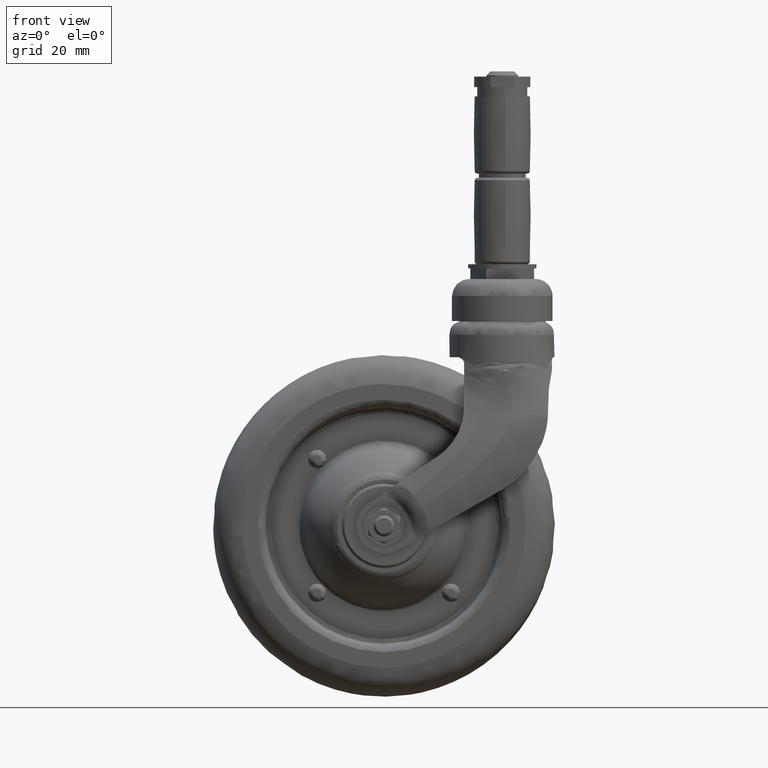
[diagram: clean part render]
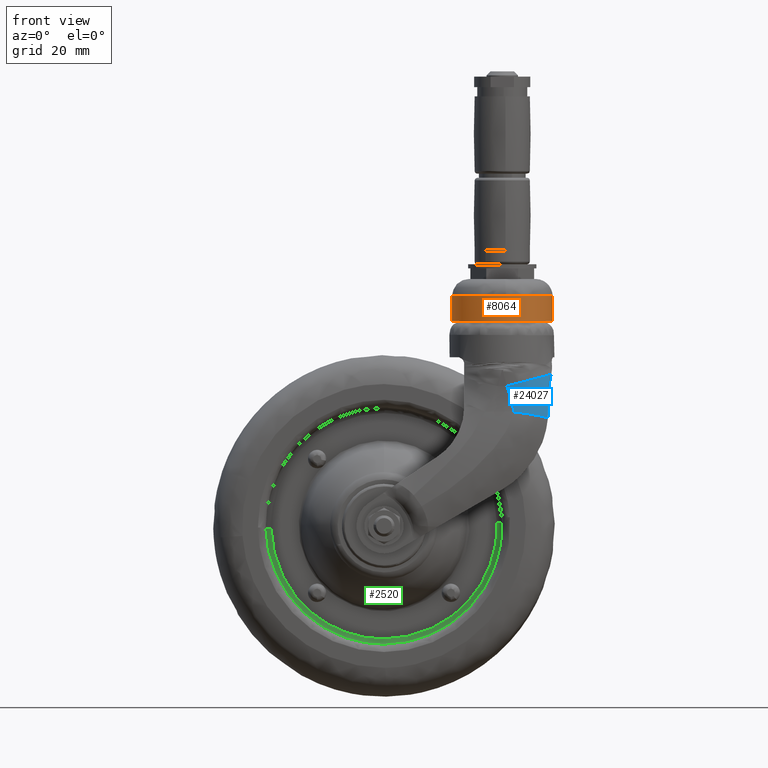
[diagram: same view with three faces highlighted in distinct colors, each labeled with its STEP entity id]
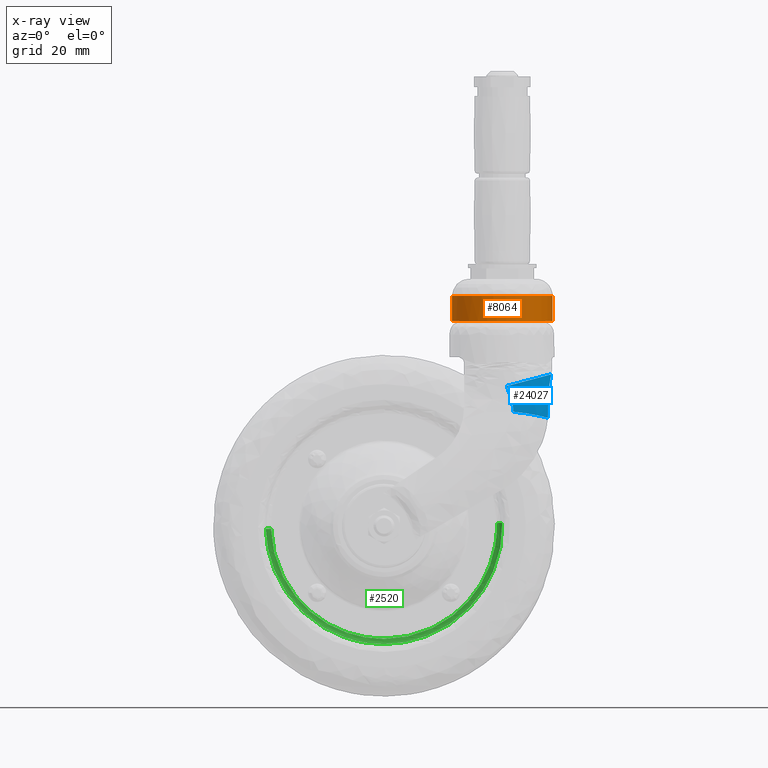
[diagram: x-ray of the same camera — body ghosted, the three highlighted faces saturated]
A machine part, front view with three faces highlighted in distinct colors.
The next image is the same camera in x-ray (body ghosted, the three faces saturated) — at least one of them is partly hidden behind the body in this view.
Their STEP definitions:

[orange] entity #8064 — the highlighted face is a freeform B-spline surface patch.
#7898=CARTESIAN_POINT('',(55.931590452188516,15.723321219946532,87.737500000254144));
#7899=CARTESIAN_POINT('',(63.379279464563020,10.545338466833288,87.737500000254130));
#7900=CARTESIAN_POINT('',(64.090966940989404,1.502491683188218,87.737500000254130));
#7901=CARTESIAN_POINT('',(65.593458624177615,-17.588475257801171,87.737500000254144));
#7902=CARTESIAN_POINT('',(46.502491683188218,-19.090966940989400,87.737500000254130));
#7903=CARTESIAN_POINT('',(27.411524742198825,-20.593458624177611,87.737500000254144));
#7904=CARTESIAN_POINT('',(25.909033059010600,-1.502491683188218,87.737500000254130));
#7905=CARTESIAN_POINT('',(24.406541375822385,17.588475257801171,87.737500000254144));
#7906=CARTESIAN_POINT('',(43.497508316811782,19.090966940989400,87.737500000254130));
#7907=CARTESIAN_POINT('',(55.931590452188516,15.723321219946532,77.756562499993635));
#7908=CARTESIAN_POINT('',(63.379279464563020,10.545338466833288,77.756562499993620));
#7909=CARTESIAN_POINT('',(64.090966940989404,1.502491683188218,77.756562499993635));
#7910=CARTESIAN_POINT('',(65.593458624177615,-17.588475257801171,77.756562499993635));
#7911=CARTESIAN_POINT('',(46.502491683188218,-19.090966940989400,77.756562499993635));
#7912=CARTESIAN_POINT('',(27.411524742198825,-20.593458624177611,77.756562499993635));
#7913=CARTESIAN_POINT('',(25.909033059010600,-1.502491683188218,77.756562499993635));
#7914=CARTESIAN_POINT('',(24.406541375822385,17.588475257801171,77.756562499993635));
#7915=CARTESIAN_POINT('',(43.497508316811782,19.090966940989400,77.756562499993635));
#7923=(BOUNDED_SURFACE()B_SPLINE_SURFACE(2,1,((#7898,#7907),(#7899,#7908),(#7900,#7909),(#7901,#7910),(#7902,#7911),(#7903,#7912),(#7904,#7913),(#7905,#7914),(#7906,#7915)),.UNSPECIFIED.,.F.,.F.,.U.)B_SPLINE_SURFACE_WITH_KNOTS((3,2,2,2,3),(2,2),(0.0,17.768104971556280,49.496863849335348,81.225622727114427,112.954381604893500),(0.0,9.980937500260506),.UNSPECIFIED.)GEOMETRIC_REPRESENTATION_ITEM()RATIONAL_B_SPLINE_SURFACE(((0.855662221768731,0.855662221768731),(0.835979797464467,0.835979797464467),(1.0,1.0),(0.707106781186548,0.707106781186548),(1.0,1.0),(0.707106781186548,0.707106781186548),(1.0,1.0),(0.707106781186548,0.707106781186548),(1.0,1.0)))REPRESENTATION_ITEM('')SURFACE());
#7924=CARTESIAN_POINT('',(55.931580559393751,15.723328097872169,87.500000000042633));
#7925=VERTEX_POINT('',#7924);
#7926=CARTESIAN_POINT('',(64.148487996503064,0.240639663767202,87.500000000230926));
#7927=VERTEX_POINT('',#7926);
#7928=CARTESIAN_POINT('',(55.931580559393751,15.723328097872166,87.500000000042633));
#7929=CARTESIAN_POINT('',(64.024626944388487,10.096670180558499,87.500000000110560));
#7930=CARTESIAN_POINT('',(64.148487996503079,0.240639663767202,87.500000000230926));
#7938=(BOUNDED_CURVE()B_SPLINE_CURVE(2,(#7928,#7929,#7930),.UNSPECIFIED.,.F.,.U.)B_SPLINE_CURVE_WITH_KNOTS((3,3),(0.348090513248019,0.497784295921710),.UNSPECIFIED.)CURVE()GEOMETRIC_REPRESENTATION_ITEM()RATIONAL_B_SPLINE_CURVE((0.860340269869817,0.822585791651068,0.994854295643969))REPRESENTATION_ITEM(''));
#7939=EDGE_CURVE('',#7925,#7927,#7938,.T.);
#7940=ORIENTED_EDGE('',*,*,#7939,.T.);
#7941=CARTESIAN_POINT('',(64.150000000000006,0.0,87.500000000000000));
#7942=VERTEX_POINT('',#7941);
#7943=CARTESIAN_POINT('',(64.148487996503064,0.240639663767202,87.500000000230926));
#7944=CARTESIAN_POINT('',(64.150000000000006,0.120324582045696,87.500000000000000));
#7945=CARTESIAN_POINT('',(64.150000000000006,0.0,87.500000000000000));
#7953=(BOUNDED_CURVE()B_SPLINE_CURVE(2,(#7943,#7944,#7945),.UNSPECIFIED.,.F.,.U.)B_SPLINE_CURVE_WITH_KNOTS((3,3),(0.497784295921710,0.500000000000000),.UNSPECIFIED.)CURVE()GEOMETRIC_REPRESENTATION_ITEM()RATIONAL_B_SPLINE_CURVE((0.994854295643970,0.997404141202286,1.0))REPRESENTATION_ITEM(''));
#7954=EDGE_CURVE('',#7927,#7942,#7953,.T.);
#7955=ORIENTED_EDGE('',*,*,#7954,.T.);
#7956=CARTESIAN_POINT('',(46.335391767929060,-19.103382654026149,87.500000000247937));
#7957=VERTEX_POINT('',#7956);
#7958=CARTESIAN_POINT('',(64.150000000000006,0.0,87.500000000000000));
#7959=CARTESIAN_POINT('',(64.150000000000020,-17.858080624669636,87.500000000000000));
#7960=CARTESIAN_POINT('',(46.335391767929067,-19.103382654026152,87.500000000247937));
#7968=(BOUNDED_CURVE()B_SPLINE_CURVE(2,(#7958,#7959,#7960),.UNSPECIFIED.,.F.,.U.)B_SPLINE_CURVE_WITH_KNOTS((3,3),(0.500000000000000,0.737833686530464),.UNSPECIFIED.)CURVE()GEOMETRIC_REPRESENTATION_ITEM()RATIONAL_B_SPLINE_CURVE((1.0,0.721360504039291,0.972879876377188))REPRESENTATION_ITEM(''));
#7969=EDGE_CURVE('',#7942,#7957,#7968,.T.);
#7970=ORIENTED_EDGE('',*,*,#7969,.T.);
#7971=CARTESIAN_POINT('',(25.850000000000001,0.0,87.500000000000000));
#7972=VERTEX_POINT('',#7971);
#7973=CARTESIAN_POINT('',(46.335391767929060,-19.103382654026145,87.500000000247937));
#7974=CARTESIAN_POINT('',(45.668509569261033,-19.149999999999999,87.500000000000000));
#7975=CARTESIAN_POINT('',(45.0,-19.149999999999999,87.500000000000000));
#7976=CARTESIAN_POINT('',(25.850000000000005,-19.150000000000006,87.500000000000000));
#7977=CARTESIAN_POINT('',(25.850000000000001,0.0,87.500000000000000));
#7985=(BOUNDED_CURVE()B_SPLINE_CURVE(2,(#7973,#7974,#7975,#7976,#7977),.UNSPECIFIED.,.F.,.U.)B_SPLINE_CURVE_WITH_KNOTS((3,2,3),(0.737833686530465,0.750000000000000,1.0),.UNSPECIFIED.)CURVE()GEOMETRIC_REPRESENTATION_ITEM()RATIONAL_B_SPLINE_CURVE((0.972879876377190,0.985746277147258,1.0,0.707106781186548,1.0))REPRESENTATION_ITEM(''));
#7986=EDGE_CURVE('',#7957,#7972,#7985,.T.);
#7987=ORIENTED_EDGE('',*,*,#7986,.T.);
#7988=CARTESIAN_POINT('',(43.497508316598797,19.090966940972638,87.500000000000000));
#7989=VERTEX_POINT('',#7988);
#7990=CARTESIAN_POINT('',(25.850000000000001,0.0,87.500000000000000));
#7991=CARTESIAN_POINT('',(25.849999999999994,17.702077914858471,87.500000000000000));
#7992=CARTESIAN_POINT('',(43.497508316598797,19.090966940972631,87.500000000000000));
#8000=(BOUNDED_CURVE()B_SPLINE_CURVE(2,(#7990,#7991,#7992),.UNSPECIFIED.,.F.,.U.)B_SPLINE_CURVE_WITH_KNOTS((3,3),(0.0,0.236331300628942),.UNSPECIFIED.)CURVE()GEOMETRIC_REPRESENTATION_ITEM()RATIONAL_B_SPLINE_CURVE((1.0,0.723120658609678,0.969723356163833))REPRESENTATION_ITEM(''));
#8001=EDGE_CURVE('',#7972,#7989,#8000,.T.);
#8002=ORIENTED_EDGE('',*,*,#8001,.T.);
#8003=CARTESIAN_POINT('',(43.497508316598797,19.090966940972638,78.0));
#8004=VERTEX_POINT('',#8003);
#8005=CARTESIAN_POINT('',(43.497508316598797,19.090966940972638,87.500000000000000));
#8006=CARTESIAN_POINT('',(43.497508316598797,19.090966940972638,78.0));
#8007=QUASI_UNIFORM_CURVE('',1,(#8005,#8006),.UNSPECIFIED.,.F.,.U.);
#8008=EDGE_CURVE('',#7989,#8004,#8007,.T.);
#8009=ORIENTED_EDGE('',*,*,#8008,.T.);
#8010=CARTESIAN_POINT('',(25.850000000000001,0.0,78.0));
#8011=VERTEX_POINT('',#8010);
#8012=CARTESIAN_POINT('',(25.850000000000001,0.0,78.0));
#8013=CARTESIAN_POINT('',(25.849999999999994,17.702077914858471,77.999999999999986));
#8014=CARTESIAN_POINT('',(43.497508316598797,19.090966940972631,78.0));
#8022=(BOUNDED_CURVE()B_SPLINE_CURVE(2,(#8012,#8013,#8014),.UNSPECIFIED.,.F.,.U.)B_SPLINE_CURVE_WITH_KNOTS((3,3),(0.0,0.236331300628942),.UNSPECIFIED.)CURVE()GEOMETRIC_REPRESENTATION_ITEM()RATIONAL_B_SPLINE_CURVE((1.0,0.723120658609678,0.969723356163833))REPRESENTATION_ITEM(''));
#8023=EDGE_CURVE('',#8011,#8004,#8022,.T.);
#8024=ORIENTED_EDGE('',*,*,#8023,.F.);
#8025=CARTESIAN_POINT('',(64.150000000000006,0.0,78.0));
#8026=VERTEX_POINT('',#8025);
#8027=CARTESIAN_POINT('',(64.150000000000006,0.0,78.0));
#8028=CARTESIAN_POINT('',(64.150000000000006,-19.150000000000006,78.0));
#8029=CARTESIAN_POINT('',(45.0,-19.149999999999999,78.0));
#8030=CARTESIAN_POINT('',(25.850000000000005,-19.150000000000006,78.0));
#8031=CARTESIAN_POINT('',(25.850000000000001,0.0,78.0));
#8039=(BOUNDED_CURVE()B_SPLINE_CURVE(2,(#8027,#8028,#8029,#8030,#8031),.UNSPECIFIED.,.F.,.U.)B_SPLINE_CURVE_WITH_KNOTS((3,2,3),(0.500000000000000,0.750000000000000,1.0),.UNSPECIFIED.)CURVE()GEOMETRIC_REPRESENTATION_ITEM()RATIONAL_B_SPLINE_CURVE((1.0,0.707106781186548,1.0,0.707106781186548,1.0))REPRESENTATION_ITEM(''));
#8040=EDGE_CURVE('',#8026,#8011,#8039,.T.);
#8041=ORIENTED_EDGE('',*,*,#8040,.F.);
#8042=CARTESIAN_POINT('',(55.931580821746678,15.723327915472691,78.0));
#8043=VERTEX_POINT('',#8042);
#8044=CARTESIAN_POINT('',(55.931580821746671,15.723327915472691,78.0));
#8045=CARTESIAN_POINT('',(64.150000000000006,10.009504864972540,78.0));
#8046=CARTESIAN_POINT('',(64.150000000000006,0.0,78.0));
#8054=(BOUNDED_CURVE()B_SPLINE_CURVE(2,(#8044,#8045,#8046),.UNSPECIFIED.,.F.,.U.)B_SPLINE_CURVE_WITH_KNOTS((3,3),(0.348090515785697,0.500000000000000),.UNSPECIFIED.)CURVE()GEOMETRIC_REPRESENTATION_ITEM()RATIONAL_B_SPLINE_CURVE((0.860340268589754,0.822026968800726,1.0))REPRESENTATION_ITEM(''));
#8055=EDGE_CURVE('',#8043,#8026,#8054,.T.);
#8056=ORIENTED_EDGE('',*,*,#8055,.F.);
#8057=CARTESIAN_POINT('',(55.931580559393751,15.723328097872169,87.500000000042633));
#8058=CARTESIAN_POINT('',(55.931580821746678,15.723327915472691,78.0));
#8059=QUASI_UNIFORM_CURVE('',1,(#8057,#8058),.UNSPECIFIED.,.F.,.U.);
#8060=EDGE_CURVE('',#7925,#8043,#8059,.T.);
#8061=ORIENTED_EDGE('',*,*,#8060,.F.);
#8062=EDGE_LOOP('',(#7940,#7955,#7970,#7987,#8002,#8009,#8024,#8041,#8056,#8061));
#8063=FACE_OUTER_BOUND('',#8062,.T.);
#8064=ADVANCED_FACE('',(#8063),#7923,.T.);

[blue] entity #24027 — the highlighted face is a freeform B-spline surface patch.
#19320=CARTESIAN_POINT('',(62.366952196205098,-16.766161363018700,41.118420051766300));
#19321=VERTEX_POINT('',#19320);
#19368=CARTESIAN_POINT('',(62.480410758347212,-15.918918824776251,45.338137530343097));
#19369=VERTEX_POINT('',#19368);
#19375=CARTESIAN_POINT('',(62.480410758347212,-15.918918824776251,45.338137530343097));
#19376=CARTESIAN_POINT('',(62.503967359121667,-16.063319316586458,44.634350633703683));
#19377=CARTESIAN_POINT('',(62.506268242472864,-16.210553697540568,43.931704253453390));
#19378=CARTESIAN_POINT('',(62.468566438099693,-16.497568229459290,42.526052264532403));
#19379=CARTESIAN_POINT('',(62.428567308913280,-16.637368596504832,41.823050619202121));
#19380=CARTESIAN_POINT('',(62.366952196205098,-16.766161363018700,41.118420051766300));
#19381=B_SPLINE_CURVE_WITH_KNOTS('',3,(#19375,#19376,#19377,#19378,#19379,#19380),.UNSPECIFIED.,.F.,.U.,(4,2,4),(0.0,0.500000000000000,1.0),.UNSPECIFIED.);
#19382=EDGE_CURVE('',#19369,#19321,#19381,.T.);
#21235=CARTESIAN_POINT('',(49.143115778760396,-21.460217302238799,43.448091829986900));
#21236=VERTEX_POINT('',#21235);
#21237=CARTESIAN_POINT('',(49.143115778760396,-21.460217302238799,43.448091829986900));
#21238=CARTESIAN_POINT('',(56.712198262451942,-21.613093153967789,42.679318348191238));
#21239=CARTESIAN_POINT('',(62.366952196205098,-16.766161363018700,41.118420051766300));
#21247=(BOUNDED_CURVE()B_SPLINE_CURVE(2,(#21237,#21238,#21239),.UNSPECIFIED.,.F.,.U.)CURVE()GEOMETRIC_REPRESENTATION_ITEM()QUASI_UNIFORM_CURVE()RATIONAL_B_SPLINE_CURVE((1.0,0.934635163372556,1.0))REPRESENTATION_ITEM(''));
#21248=EDGE_CURVE('',#21236,#19321,#21247,.T.);
#21551=CARTESIAN_POINT('',(46.713380783598602,-20.500000000000000,53.200000000000003));
#21552=VERTEX_POINT('',#21551);
#21578=CARTESIAN_POINT('',(49.143115778760396,-21.460217302238799,43.448091829986900));
#21579=CARTESIAN_POINT('',(49.174056819734872,-21.418592650326410,43.657411262560153));
#21580=CARTESIAN_POINT('',(49.188845561602712,-21.378434806352171,43.866354946182533));
#21581=CARTESIAN_POINT('',(49.198274445723108,-21.300924421536120,44.283943736772180));
#21582=CARTESIAN_POINT('',(49.192648241553123,-21.263574292428270,44.492578850308632));
#21583=CARTESIAN_POINT('',(49.166275595280972,-21.191620032403069,44.909736764950850));
#21584=CARTESIAN_POINT('',(49.145464928797047,-21.157016504487480,45.118257160072588));
#21585=CARTESIAN_POINT('',(49.105308391248570,-21.107141780261362,45.431042297895956));
#21586=CARTESIAN_POINT('',(49.090421261273718,-21.090855434623720,45.535304340750002));
#21587=CARTESIAN_POINT('',(49.057954103957748,-21.058956190929869,45.743840579709527));
#21588=CARTESIAN_POINT('',(49.040361379498748,-21.043335975756701,45.848169311151743));
#21589=CARTESIAN_POINT('',(48.946727377647512,-20.967212593207361,46.367762748305637));
#21590=CARTESIAN_POINT('',(48.853743376976418,-20.912348721627112,46.778650683191607));
#21591=CARTESIAN_POINT('',(48.644651158054259,-20.813498985255880,47.594600525758793));
#21592=CARTESIAN_POINT('',(48.528404983532560,-20.769524529238488,47.999622639678002));
#21593=CARTESIAN_POINT('',(48.280651777769357,-20.691789571381332,48.806107746404777));
#21594=CARTESIAN_POINT('',(48.149095951428372,-20.658033439794849,49.207556695709137));
#21595=CARTESIAN_POINT('',(47.876471354646483,-20.600341162683620,50.008561132338663));
#21596=CARTESIAN_POINT('',(47.735385802775603,-20.576407076579720,50.408111842266173));
#21597=CARTESIAN_POINT('',(47.448158042933393,-20.538152476143232,51.206620489831202));
#21598=CARTESIAN_POINT('',(47.302011696961060,-20.523836523182450,51.605603497391471));
#21599=CARTESIAN_POINT('',(47.008371367045399,-20.504763562517240,52.402911780716970));
#21600=CARTESIAN_POINT('',(46.860868293069053,-20.500000000000000,52.801406872918641));
#21601=CARTESIAN_POINT('',(46.713380783598502,-20.500000000000000,53.200000000000003));
#21602=B_SPLINE_CURVE_WITH_KNOTS('',3,(#21578,#21579,#21580,#21581,#21582,#21583,#21584,#21585,#21586,#21587,#21588,#21589,#21590,#21591,#21592,#21593,#21594,#21595,#21596,#21597,#21598,#21599,#21600,#21601),.UNSPECIFIED.,.F.,.U.,(4,2,2,2,2,2,2,2,2,2,2,4),(0.0,0.062499999999999,0.124999999999997,0.187499999999996,0.218749999999995,0.249999999999994,0.374999999999995,0.499999999999996,0.624999999999997,0.749999999999998,0.874999999999999,1.0),.UNSPECIFIED.);
#21603=EDGE_CURVE('',#21236,#21552,#21602,.T.);
#23856=CARTESIAN_POINT('',(46.600768520186833,-20.499975799452542,53.223470933451175));
#23857=CARTESIAN_POINT('',(46.606699549181634,-20.499983866333316,53.207293645348827));
#23858=CARTESIAN_POINT('',(46.612630554909714,-20.499991933182461,53.191116420708177));
#23859=CARTESIAN_POINT('',(46.692696856732148,-20.500100832550995,52.972730094659674));
#23860=CARTESIAN_POINT('',(46.766949182156502,-20.501428866049793,52.770576655975340));
#23861=CARTESIAN_POINT('',(46.915506413374693,-20.506534524569329,52.366370507602667));
#23862=CARTESIAN_POINT('',(46.989805912162062,-20.510312371506330,52.164316339436589));
#23863=CARTESIAN_POINT('',(47.212260244863302,-20.525319819253788,51.558226589094886));
#23864=CARTESIAN_POINT('',(47.360068996294004,-20.540234751755822,51.154063866682399));
#23865=CARTESIAN_POINT('',(47.650206760371702,-20.579836741460653,50.346709325130796));
#23866=CARTESIAN_POINT('',(47.792549501964238,-20.604520631511249,49.943459725566640));
#23867=CARTESIAN_POINT('',(48.066797106867035,-20.663685166896947,49.137294456169265));
#23868=CARTESIAN_POINT('',(48.198716151934768,-20.698165526792561,48.734381994235747));
#23869=CARTESIAN_POINT('',(48.445982517971913,-20.777034936374104,47.928272147279380));
#23870=CARTESIAN_POINT('',(48.561369977281672,-20.821422731876154,47.525080847645143));
#23871=CARTESIAN_POINT('',(48.767569102332693,-20.920318356572739,46.717654485473702));
#23872=CARTESIAN_POINT('',(48.858486166115547,-20.974823358029784,46.313429575424877));
#23873=CARTESIAN_POINT('',(48.967573916419084,-21.064434611710364,45.705539587681798));
#23874=CARTESIAN_POINT('',(48.999353402498905,-21.095614759270390,45.502651609800353));
#23875=CARTESIAN_POINT('',(49.051459488120116,-21.160659595121381,45.096180187670548));
#23876=CARTESIAN_POINT('',(49.071810075835629,-21.194523902355701,44.892597755749463));
#23877=CARTESIAN_POINT('',(49.097731101790721,-21.265020799634236,44.484513825220652));
#23878=CARTESIAN_POINT('',(49.103370382928830,-21.301653227202895,44.280011847569142));
#23879=CARTESIAN_POINT('',(49.096536345153012,-21.358760190873362,43.972354852027728));
#23880=CARTESIAN_POINT('',(49.091688756085944,-21.378155774615006,43.869651347218245));
#23881=CARTESIAN_POINT('',(49.075615050368675,-21.417681629930279,43.663908700361020));
#23882=CARTESIAN_POINT('',(49.064391823308348,-21.437811691641347,43.560872437065953));
#23883=CARTESIAN_POINT('',(49.046542320187584,-21.461597252257974,43.441135035149827));
#23884=CARTESIAN_POINT('',(49.044080327507558,-21.464878008911676,43.424619583428367));
#23885=CARTESIAN_POINT('',(49.041618336694881,-21.468158763076950,43.408104144233604));
#23886=CARTESIAN_POINT('',(46.648064589554721,-20.499987889849390,53.235971026861741));
#23887=CARTESIAN_POINT('',(46.654020512343720,-20.499991926574157,53.219800441154526));
#23888=CARTESIAN_POINT('',(46.659976423441002,-20.499995963291017,53.203629887190978));
#23889=CARTESIAN_POINT('',(46.740380080604659,-20.500050458194185,52.985330511025694));
#23890=CARTESIAN_POINT('',(46.814876995028285,-20.501326833543143,52.783238973649311));
#23891=CARTESIAN_POINT('',(46.963829703860455,-20.506328770522714,52.379118019345768));
#23892=CARTESIAN_POINT('',(47.038281222032509,-20.510054410817006,52.177087243261560));
#23893=CARTESIAN_POINT('',(47.261094039016456,-20.524906877859674,51.571006900620262));
#23894=CARTESIAN_POINT('',(47.409018505542114,-20.539719655703802,51.166770206763680));
#23895=CARTESIAN_POINT('',(47.699260005712695,-20.579133549451637,50.359098631982100));
#23896=CARTESIAN_POINT('',(47.841590100175388,-20.603731041989473,49.955605966932609));
#23897=CARTESIAN_POINT('',(48.115746719963283,-20.662751606520789,49.148777367113681));
#23898=CARTESIAN_POINT('',(48.247586259083270,-20.697174207407439,48.745443657822207));
#23899=CARTESIAN_POINT('',(48.494659310267394,-20.775972285514172,47.938291826051987));
#23900=CARTESIAN_POINT('',(48.609932046248716,-20.820346468756345,47.534478809010217));
#23901=CARTESIAN_POINT('',(48.815881858710505,-20.919281302006837,46.725557249335530));
#23902=CARTESIAN_POINT('',(48.906663857621218,-20.973838889091979,46.320459432693440));
#23903=CARTESIAN_POINT('',(49.015537146140609,-21.063608878379672,45.710979519505379));
#23904=CARTESIAN_POINT('',(49.047242726777874,-21.094855652852633,45.507512483900634));
#23905=CARTESIAN_POINT('',(49.099195996605154,-21.160070804756518,45.099751410941188));
#23906=CARTESIAN_POINT('',(49.119467739102646,-21.194038648466371,44.895459188934872));
#23907=CARTESIAN_POINT('',(49.145224388689584,-21.264797408788773,44.485756432969843));
#23908=CARTESIAN_POINT('',(49.150778382661422,-21.301587300179968,44.280349428765795));
#23909=CARTESIAN_POINT('',(49.143808158034723,-21.359001250156933,43.971065172477374));
#23910=CARTESIAN_POINT('',(49.138913786356134,-21.378511171176036,43.867773418285225));
#23911=CARTESIAN_POINT('',(49.122742063217927,-21.418301694221729,43.660711971639628));
#23912=CARTESIAN_POINT('',(49.111472445596881,-21.438582260480747,43.556943149354602));
#23913=CARTESIAN_POINT('',(49.093552783740549,-21.462575601832381,43.436223860215769));
#23914=CARTESIAN_POINT('',(49.091081110160303,-21.465885022980846,43.419572950171670));
#23915=CARTESIAN_POINT('',(49.088609437518144,-21.469194442873299,43.402922046447074));
#23916=CARTESIAN_POINT('',(58.708064764623572,-20.503070813867883,56.423363356387050));
#23917=CARTESIAN_POINT('',(58.723395944985725,-20.502047718899881,56.409701997497926));
#23918=CARTESIAN_POINT('',(58.738734760671832,-20.501024114404146,56.396033834899107));
#23919=CARTESIAN_POINT('',(58.946558978191945,-20.487155390264771,56.210845143987683));
#23920=CARTESIAN_POINT('',(59.114266227620107,-20.475142924064304,56.032683593110605));
#23921=CARTESIAN_POINT('',(59.414972812264097,-20.453313484238425,55.663685179285586));
#23922=CARTESIAN_POINT('',(59.547965083043302,-20.443484301607004,55.472784989120072));
#23923=CARTESIAN_POINT('',(59.908519922375511,-20.417959511459276,54.880969716060925));
#23924=CARTESIAN_POINT('',(60.098703366830932,-20.406186006977340,54.460765465325153));
#23925=CARTESIAN_POINT('',(60.419012639151646,-20.396792333360917,53.571708059811236));
#23926=CARTESIAN_POINT('',(60.548785166110726,-20.399135901614304,53.102889319609758));
#23927=CARTESIAN_POINT('',(60.767937484650226,-20.421450741769178,52.116808585611324));
#23928=CARTESIAN_POINT('',(60.857090456118641,-20.441393185498427,51.599582958068083));
#23929=CARTESIAN_POINT('',(61.002900524869048,-20.502908004646233,50.513000492544812));
#23930=CARTESIAN_POINT('',(61.059435726159826,-20.544432736995265,49.943765667804328));
#23931=CARTESIAN_POINT('',(61.140033713169224,-20.654737961702718,48.741481597379085));
#23932=CARTESIAN_POINT('',(61.164068641263036,-20.723369555863474,48.109001046429050));
#23933=CARTESIAN_POINT('',(61.170868399772580,-20.854343109164486,47.089622569544005));
#23934=CARTESIAN_POINT('',(61.168186030577331,-20.902723356365897,46.737815484910143));
#23935=CARTESIAN_POINT('',(61.151446360737708,-21.011416261001603,46.001394164670970));
#23936=CARTESIAN_POINT('',(61.137392329814126,-21.071671242063204,45.617032297777619));
#23937=CARTESIAN_POINT('',(61.095900484214305,-21.208585851085743,44.798432259250234));
#23938=CARTESIAN_POINT('',(61.068451753791351,-21.285014216945882,44.365212373010266));
#23939=CARTESIAN_POINT('',(61.015487549588997,-21.419540043874171,43.647179516169977));
#23940=CARTESIAN_POINT('',(60.995864061471657,-21.467741804332814,43.396275362022294));
#23941=CARTESIAN_POINT('',(60.952494078539537,-21.573949301782907,42.858273927134839));
#23942=CARTESIAN_POINT('',(60.929990189420778,-21.632016014297459,42.570584977355736));
#23943=CARTESIAN_POINT('',(60.898545828881524,-21.708253032956875,42.202958294253790));
#23944=CARTESIAN_POINT('',(60.894206979991729,-21.718772595069076,42.152231340406473));
#23945=CARTESIAN_POINT('',(60.889867719819783,-21.729293154337075,42.101499578119835));
#23946=CARTESIAN_POINT('',(64.030136953883925,-9.365544225334030,57.841038391967572));
#23947=CARTESIAN_POINT('',(64.042101526158362,-9.351474657239232,57.822797516901709));
#23948=CARTESIAN_POINT('',(64.054067569589222,-9.337403359159010,57.804554398949101));
#23949=CARTESIAN_POINT('',(64.215753286017645,-9.147271347327056,57.558052569576709));
#23950=CARTESIAN_POINT('',(64.347305830313587,-9.006249257463599,57.322998996185191));
#23951=CARTESIAN_POINT('',(64.588443320632393,-8.774379503294663,56.840372475680276));
#23952=CARTESIAN_POINT('',(64.697954528440121,-8.683763958177138,56.592690896442747));
#23953=CARTESIAN_POINT('',(65.004908864014027,-8.469963368284754,55.830550076414411));
#23954=CARTESIAN_POINT('',(65.181660319360574,-8.404295236773629,55.297019450853718));
#23955=CARTESIAN_POINT('',(65.506291169335142,-8.372665087470756,54.179486994947226));
#23956=CARTESIAN_POINT('',(65.653672783512093,-8.407277421014463,53.595587935699797));
#23957=CARTESIAN_POINT('',(65.927289872886291,-8.548618702755457,52.372542190829783));
#23958=CARTESIAN_POINT('',(66.053325941797340,-8.655539503572308,51.733570749532660));
#23959=CARTESIAN_POINT('',(66.283508290983690,-8.927076207902429,50.389528053446050));
#23960=CARTESIAN_POINT('',(66.387610269439335,-9.091756386747193,49.684807040815677));
#23961=CARTESIAN_POINT('',(66.566960768773527,-9.472613995672534,48.186349058593883));
#23962=CARTESIAN_POINT('',(66.642356140463193,-9.688855400295077,47.393686089957605));
#23963=CARTESIAN_POINT('',(66.722496373870641,-10.051145024263224,46.098657102119738));
#23964=CARTESIAN_POINT('',(66.743631713081470,-10.178229516401469,45.649082461888973));
#23965=CARTESIAN_POINT('',(66.771246260024071,-10.445019454796984,44.699612781114340));
#23966=CARTESIAN_POINT('',(66.777794032669448,-10.584770754648888,44.200122330035398));
#23967=CARTESIAN_POINT('',(66.770403509574422,-10.876168205132659,43.123570902829726));
#23968=CARTESIAN_POINT('',(66.756717796489525,-11.028016780750017,42.548040806511587));
#23969=CARTESIAN_POINT('',(66.711831125598664,-11.261614811211505,41.578429082222542));
#23970=CARTESIAN_POINT('',(66.692763001733837,-11.340429259132318,41.237217488081214));
#23971=CARTESIAN_POINT('',(66.642956825347810,-11.497986702596680,40.498765799651594));
#23972=CARTESIAN_POINT('',(66.613112279823483,-11.575566997848465,40.100442003991468));
#23973=CARTESIAN_POINT('',(66.565712728492969,-11.665541606576955,39.586791820427997));
#23974=CARTESIAN_POINT('',(66.559174220880536,-11.677953109377786,39.515936600471619));
#23975=CARTESIAN_POINT('',(66.552635558441608,-11.690364906072819,39.445079702721763));
#23983=(BOUNDED_SURFACE()B_SPLINE_SURFACE(3,2,((#23856,#23886,#23916,#23946),(#23857,#23887,#23917,#23947),(#23858,#23888,#23918,#23948),(#23859,#23889,#23919,#23949),(#23860,#23890,#23920,#23950),(#23861,#23891,#23921,#23951),(#23862,#23892,#23922,#23952),(#23863,#23893,#23923,#23953),(#23864,#23894,#23924,#23954),(#23865,#23895,#23925,#23955),(#23866,#23896,#23926,#23956),(#23867,#23897,#23927,#23957),(#23868,#23898,#23928,#23958),(#23869,#23899,#23929,#23959),(#23870,#23900,#23930,#23960),(#23871,#23901,#23931,#23961),(#23872,#23902,#23932,#23962),(#23873,#23903,#23933,#23963),(#23874,#23904,#23934,#23964),(#23875,#23905,#23935,#23965),(#23876,#23906,#23936,#23966),(#23877,#23907,#23937,#23967),(#23878,#23908,#23938,#23968),(#23879,#23909,#23939,#23969),(#23880,#23910,#23940,#23970),(#23881,#23911,#23941,#23971),(#23882,#23912,#23942,#23972),(#23883,#23913,#23943,#23973),(#23884,#23914,#23944,#23974),(#23885,#23915,#23945,#23975)),.UNSPECIFIED.,.F.,.F.,.U.)B_SPLINE_SURFACE_WITH_KNOTS((4,2,2,2,2,2,2,2,2,2,2,2,2,2,4),(3,1,3),(0.0,0.216699498810884,2.925443294493420,5.634187090175956,11.051674681541030,16.469162272906100,21.886649864271181,27.304137455636241,32.721625047001318,35.430368842683862,38.139112638366392,40.847856434048943,42.202228331890197,43.556600229731458,43.773299728542433),(0.0,0.113383174211656,23.914534861263061),.UNSPECIFIED.)GEOMETRIC_REPRESENTATION_ITEM()RATIONAL_B_SPLINE_SURFACE(((1.001633835580472,1.000816917790236,0.828514377230546,0.951365153622999),(1.001635800235603,1.000817900117802,0.828308169144147,0.951306671177406),(1.001637764890733,1.000818882445367,0.828101961057748,0.951248188731812),(1.001664287735540,1.000832143867770,0.825318151833745,0.950458675699957),(1.001683698475514,1.000841849237757,0.823280821472918,0.949880870706641),(1.001715118923257,1.000857559461629,0.819982965119792,0.948945569341329),(1.001727122776598,1.000863561388299,0.818723053602148,0.948588247239805),(1.001754804307065,1.000877402153533,0.815817629979288,0.947764243283812),(1.001762274328661,1.000881137164331,0.815033584558306,0.947541881035675),(1.001764197843621,1.000882098921810,0.814831694499939,0.947484623221200),(1.001758573097142,1.000879286548571,0.815422061832086,0.947652056642389),(1.001739423517585,1.000869711758793,0.817431981076876,0.948222087599631),(1.001725856909138,1.000862928454569,0.818855917687289,0.948625928674933),(1.001694056374171,1.000847028187085,0.822193667586069,0.949572544204272),(1.001675790060302,1.000837895030151,0.824110880215635,0.950116282741679),(1.001636954099354,1.000818477049677,0.828187060847562,0.951272323788369),(1.001616328562305,1.000808164281152,0.830351895001153,0.951886289990266),(1.001585650284556,1.000792825142278,0.833571853990940,0.952799498971167),(1.001575471610083,1.000787735805042,0.834640196700454,0.953102490456494),(1.001555824270676,1.000777912135338,0.836702360283082,0.953687338372172),(1.001546335253208,1.000773167626604,0.837698317336145,0.953969800642137),(1.001529243089585,1.000764621544792,0.839492292420610,0.954478587916708),(1.001521558336866,1.000760779168433,0.840298875788919,0.954707342126971),(1.001513691557799,1.000756845778899,0.841124564446728,0.954941514767098),(1.001511693238765,1.000755846619382,0.841334305860197,0.955000999295645),(1.001509953072627,1.000754976536314,0.841516951823724,0.955052799313827),(1.001510229419832,1.000755114709916,0.841487946718768,0.955044573208333),(1.001512983087685,1.000756491543843,0.841198924706784,0.954962603997588),(1.001513362903933,1.000756681451967,0.841159059602451,0.954951297899773),(1.001513742720182,1.000756871360091,0.841119194498118,0.954939991801957)))REPRESENTATION_ITEM('')SURFACE());
#23984=ORIENTED_EDGE('',*,*,#19382,.F.);
#23985=CARTESIAN_POINT('',(63.600352629854413,-10.242164435342000,57.663229097695307));
#23986=VERTEX_POINT('',#23985);
#23987=CARTESIAN_POINT('',(62.480410758347212,-15.918918824776251,45.338137530343097));
#23988=CARTESIAN_POINT('',(62.461425612621142,-15.802541428356550,45.905343502492393));
#23989=CARTESIAN_POINT('',(62.452343769431167,-15.668253012894080,46.464996853526493));
#23990=CARTESIAN_POINT('',(62.452509350217753,-15.369566746417840,47.571503430303437));
#23991=CARTESIAN_POINT('',(62.461764236179270,-15.205133878298160,48.118342624965543));
#23992=CARTESIAN_POINT('',(62.497457634318572,-14.848802184197760,49.200316062583127));
#23993=CARTESIAN_POINT('',(62.523900966258253,-14.656882242097019,49.735441824716773));
#23994=CARTESIAN_POINT('',(62.592956060437793,-14.246083159014059,50.794247462342547));
#23995=CARTESIAN_POINT('',(62.635571389557278,-14.027194470276140,51.317923417520142));
#23996=CARTESIAN_POINT('',(62.735964999548152,-13.561281334354840,52.353435560237443));
#23997=CARTESIAN_POINT('',(62.793746751747797,-13.314259541864431,52.865272562247007));
#23998=CARTESIAN_POINT('',(62.890969046622210,-12.920562210105549,53.623399605194763));
#23999=CARTESIAN_POINT('',(62.925133744893600,-12.785456485713430,53.874499091823893));
#24000=CARTESIAN_POINT('',(62.996821986301583,-12.506983158006150,54.373288917718959));
#24001=CARTESIAN_POINT('',(63.034366890855949,-12.363536656462490,54.621112214334786));
#24002=CARTESIAN_POINT('',(63.151645713395652,-11.920326504018460,55.358263662413997));
#24003=CARTESIAN_POINT('',(63.235505060367387,-11.609769842699979,55.838014067042948));
#24004=CARTESIAN_POINT('',(63.412071921373048,-10.953870813583720,56.771364895122112));
#24005=CARTESIAN_POINT('',(63.504793504440677,-10.608575735113950,57.224995964235653));
#24006=CARTESIAN_POINT('',(63.600352629854413,-10.242164435342000,57.663229097695307));
#24007=B_SPLINE_CURVE_WITH_KNOTS('',3,(#23987,#23988,#23989,#23990,#23991,#23992,#23993,#23994,#23995,#23996,#23997,#23998,#23999,#24000,#24001,#24002,#24003,#24004,#24005,#24006),.UNSPECIFIED.,.F.,.U.,(4,2,2,2,2,2,2,2,2,4),(0.0,0.124999999999999,0.249999999999998,0.374999999999997,0.499999999999996,0.624999999999995,0.687499999999995,0.749999999999996,0.874999999999998,1.0),.UNSPECIFIED.);
#24008=EDGE_CURVE('',#19369,#23986,#24007,.T.);
#24009=ORIENTED_EDGE('',*,*,#24008,.T.);
#24010=CARTESIAN_POINT('',(46.713380783598602,-20.500000000000000,53.200000000000003));
#24011=CARTESIAN_POINT('',(58.068957734272217,-20.499999999999918,56.201280627977361));
#24012=CARTESIAN_POINT('',(63.600352629854413,-10.242164435342000,57.663229097695307));
#24020=(BOUNDED_CURVE()B_SPLINE_CURVE(2,(#24010,#24011,#24012),.UNSPECIFIED.,.F.,.U.)CURVE()GEOMETRIC_REPRESENTATION_ITEM()QUASI_UNIFORM_CURVE()RATIONAL_B_SPLINE_CURVE((1.0,0.862295837218036,1.0))REPRESENTATION_ITEM(''));
#24021=EDGE_CURVE('',#21552,#23986,#24020,.T.);
#24022=ORIENTED_EDGE('',*,*,#24021,.F.);
#24023=ORIENTED_EDGE('',*,*,#21603,.F.);
#24024=ORIENTED_EDGE('',*,*,#21248,.T.);
#24025=EDGE_LOOP('',(#23984,#24009,#24022,#24023,#24024));
#24026=FACE_OUTER_BOUND('',#24025,.T.);
#24027=ADVANCED_FACE('',(#24026),#23983,.T.);

[green] entity #2520 — the highlighted face is a freeform B-spline surface patch.
#1105=CARTESIAN_POINT('',(-14.767864456606540,-3.499999680981168,-42.507766106810323));
#1106=VERTEX_POINT('',#1105);
#1112=CARTESIAN_POINT('',(-44.985788517746613,-3.499998371983619,-1.130854294971957));
#1113=VERTEX_POINT('',#1112);
#1114=CARTESIAN_POINT('',(-14.767864456606539,-3.499999680981169,-42.507766106810323));
#1115=CARTESIAN_POINT('',(-44.202719096784151,-3.499998949997873,-32.281636073650184));
#1116=CARTESIAN_POINT('',(-44.985788517746620,-3.499998371983619,-1.130854294971957));
#1124=(BOUNDED_CURVE()B_SPLINE_CURVE(2,(#1114,#1115,#1116),.UNSPECIFIED.,.F.,.U.)B_SPLINE_CURVE_WITH_KNOTS((3,3),(0.555767570840636,0.745579891769723),.UNSPECIFIED.)CURVE()GEOMETRIC_REPRESENTATION_ITEM()RATIONAL_B_SPLINE_CURVE((0.898477392303113,0.775310703895597,0.989826157681384))REPRESENTATION_ITEM(''));
#1125=EDGE_CURVE('',#1106,#1113,#1124,.T.);
#1144=CARTESIAN_POINT('',(44.985788517746613,-3.499998371983619,1.130854294971966));
#1145=VERTEX_POINT('',#1144);
#1159=CARTESIAN_POINT('',(32.641848763529957,-3.499999170513892,-30.975953727025200));
#1160=VERTEX_POINT('',#1159);
#1161=CARTESIAN_POINT('',(44.985788517746613,-3.499998371983619,1.130854294971966));
#1162=CARTESIAN_POINT('',(44.999999999998671,-3.499998381959363,0.565516445562956));
#1163=CARTESIAN_POINT('',(44.999999999998671,-3.499998392189030,-3.903341E-014));
#1164=CARTESIAN_POINT('',(44.999999999998941,-3.499998716945336,-17.953177827610851));
#1165=CARTESIAN_POINT('',(32.641848763529964,-3.499999170513891,-30.975953727025203));
#1173=(BOUNDED_CURVE()B_SPLINE_CURVE(2,(#1161,#1162,#1163,#1164,#1165),.UNSPECIFIED.,.F.,.U.)B_SPLINE_CURVE_WITH_KNOTS((3,2,3),(0.245579891769723,0.250000000000000,0.371049516583931),.UNSPECIFIED.)CURVE()GEOMETRIC_REPRESENTATION_ITEM()RATIONAL_B_SPLINE_CURVE((0.989826157681384,0.994821521091721,1.0,0.858181669807680,0.853699662115525))REPRESENTATION_ITEM(''));
#1174=EDGE_CURVE('',#1145,#1160,#1173,.T.);
#1276=CARTESIAN_POINT('',(0.0,-3.500000000000000,-45.0));
#1277=VERTEX_POINT('',#1276);
#1278=CARTESIAN_POINT('',(32.641848763529964,-3.499999170513891,-30.975953727025203));
#1279=CARTESIAN_POINT('',(19.333527547892604,-3.499999658955380,-45.000000000000014));
#1280=CARTESIAN_POINT('',(0.0,-3.500000000000000,-45.0));
#1288=(BOUNDED_CURVE()B_SPLINE_CURVE(2,(#1278,#1279,#1280),.UNSPECIFIED.,.F.,.U.)B_SPLINE_CURVE_WITH_KNOTS((3,3),(0.371049516583931,0.500000000000000),.UNSPECIFIED.)CURVE()GEOMETRIC_REPRESENTATION_ITEM()RATIONAL_B_SPLINE_CURVE((0.853699662115525,0.848925111378868,1.0))REPRESENTATION_ITEM(''));
#1289=EDGE_CURVE('',#1160,#1277,#1288,.T.);
#1291=CARTESIAN_POINT('',(0.0,-3.500000000000000,-45.0));
#1292=CARTESIAN_POINT('',(-7.594227691037721,-3.499999859130804,-45.0));
#1293=CARTESIAN_POINT('',(-14.767864456606537,-3.499999680981168,-42.507766106810330));
#1301=(BOUNDED_CURVE()B_SPLINE_CURVE(2,(#1291,#1292,#1293),.UNSPECIFIED.,.F.,.U.)B_SPLINE_CURVE_WITH_KNOTS((3,3),(0.500000000000000,0.555767570840635),.UNSPECIFIED.)CURVE()GEOMETRIC_REPRESENTATION_ITEM()RATIONAL_B_SPLINE_CURVE((1.0,0.934664226684317,0.898477392303114))REPRESENTATION_ITEM(''));
#1302=EDGE_CURVE('',#1277,#1106,#1301,.T.);
#2431=CARTESIAN_POINT('',(44.980922668587070,-3.639448391482199,1.130731977067051));
#2432=CARTESIAN_POINT('',(46.111654645654134,-3.639448391482200,-43.850190691520005));
#2433=CARTESIAN_POINT('',(1.130731977067064,-3.639448391482199,-44.980922668587070));
#2434=CARTESIAN_POINT('',(-43.850190691520005,-3.639448391482200,-46.111654645654134));
#2435=CARTESIAN_POINT('',(-44.980922668587070,-3.639448391482199,-1.130731977067067));
#2436=CARTESIAN_POINT('',(45.141217955244400,-1.345328091702281,1.134761485481807));
#2437=CARTESIAN_POINT('',(46.275979440726232,-1.345328091702281,-44.006456469762597));
#2438=CARTESIAN_POINT('',(1.134761485481820,-1.345328091702281,-45.141217955244400));
#2439=CARTESIAN_POINT('',(-44.006456469762597,-1.345328091702281,-46.275979440726232));
#2440=CARTESIAN_POINT('',(-45.141217955244400,-1.345328091702281,-1.134761485481823));
#2441=CARTESIAN_POINT('',(42.847762326381066,-1.504815331442346,1.077108519208814));
#2442=CARTESIAN_POINT('',(43.924870845589872,-1.504815331442346,-41.770653807172252));
#2443=CARTESIAN_POINT('',(1.077108519208826,-1.504815331442346,-42.847762326381066));
#2444=CARTESIAN_POINT('',(-41.770653807172252,-1.504815331442346,-43.924870845589872));
#2445=CARTESIAN_POINT('',(-42.847762326381066,-1.504815331442346,-1.077108519208828));
#2453=(BOUNDED_SURFACE()B_SPLINE_SURFACE(2,2,((#2431,#2436,#2441),(#2432,#2437,#2442),(#2433,#2438,#2443),(#2434,#2439,#2444),(#2435,#2440,#2445)),.UNSPECIFIED.,.F.,.F.,.U.)B_SPLINE_SURFACE_WITH_KNOTS((3,2,3),(3,3),(0.0,74.550376677425362,149.100753354850700),(0.0,3.644741243817729),.UNSPECIFIED.)GEOMETRIC_REPRESENTATION_ITEM()RATIONAL_B_SPLINE_SURFACE(((0.910892946007135,0.599412883198042,0.915966720026040),(0.644098579056637,0.423848914439916,0.647686279071612),(0.910892946007135,0.599412883198042,0.915966720026040),(0.644098579056637,0.423848914439916,0.647686279071612),(0.910892946007135,0.599412883198042,0.915966720026040)))REPRESENTATION_ITEM('')SURFACE());
#2454=ORIENTED_EDGE('',*,*,#1174,.F.);
#2455=CARTESIAN_POINT('',(42.986420139986947,-1.500000000000000,1.080594104090257));
#2456=VERTEX_POINT('',#2455);
#2457=CARTESIAN_POINT('',(44.985788517746613,-3.499998371983619,1.130854294971966));
#2458=CARTESIAN_POINT('',(44.985786890246914,-1.500000001610948,1.130854254037998));
#2459=CARTESIAN_POINT('',(42.986420139986947,-1.500000000000000,1.080594104090257));
#2467=(BOUNDED_CURVE()B_SPLINE_CURVE(2,(#2457,#2458,#2459),.UNSPECIFIED.,.F.,.U.)B_SPLINE_CURVE_WITH_KNOTS((3,3),(-1.723440443890332,-0.263586879761466),.UNSPECIFIED.)CURVE()GEOMETRIC_REPRESENTATION_ITEM()RATIONAL_B_SPLINE_CURVE((0.883897271757046,0.626638877723546,0.888510408763471))REPRESENTATION_ITEM(''));
#2468=EDGE_CURVE('',#1145,#2456,#2467,.T.);
#2469=ORIENTED_EDGE('',*,*,#2468,.T.);
#2470=CARTESIAN_POINT('',(0.0,-1.500000000000000,-43.0));
#2471=VERTEX_POINT('',#2470);
#2472=CARTESIAN_POINT('',(0.0,-1.500000000000000,-43.0));
#2473=CARTESIAN_POINT('',(42.999999999999993,-1.500000000000000,-42.999999999999993));
#2474=CARTESIAN_POINT('',(43.0,-1.500000000000000,0.0));
#2475=CARTESIAN_POINT('',(43.0,-1.500000000000000,0.540382381311706));
#2476=CARTESIAN_POINT('',(42.986420139986947,-1.500000000000000,1.080594104090258));
#2484=(BOUNDED_CURVE()B_SPLINE_CURVE(2,(#2472,#2473,#2474,#2475,#2476),.UNSPECIFIED.,.F.,.U.)B_SPLINE_CURVE_WITH_KNOTS((3,2,3),(0.500000000000000,0.750000000000000,0.754420108230244),.UNSPECIFIED.)CURVE()GEOMETRIC_REPRESENTATION_ITEM()RATIONAL_B_SPLINE_CURVE((1.0,0.707106781186548,1.0,0.994821521091759,0.989826157681459))REPRESENTATION_ITEM(''));
#2485=EDGE_CURVE('',#2471,#2456,#2484,.T.);
#2486=ORIENTED_EDGE('',*,*,#2485,.F.);
#2487=CARTESIAN_POINT('',(-42.986420139986947,-1.500000000000000,-1.080594104090254));
#2488=VERTEX_POINT('',#2487);
#2489=CARTESIAN_POINT('',(-42.986420139986954,-1.500000000000000,-1.080594104090254));
#2490=CARTESIAN_POINT('',(-41.932648675755210,-1.500000000000000,-43.000000000000007));
#2491=CARTESIAN_POINT('',(0.0,-1.500000000000000,-43.0));
#2499=(BOUNDED_CURVE()B_SPLINE_CURVE(2,(#2489,#2490,#2491),.UNSPECIFIED.,.F.,.U.)B_SPLINE_CURVE_WITH_KNOTS((3,3),(0.254420108230245,0.500000000000000),.UNSPECIFIED.)CURVE()GEOMETRIC_REPRESENTATION_ITEM()RATIONAL_B_SPLINE_CURVE((0.989826157681456,0.712285260094789,1.0))REPRESENTATION_ITEM(''));
#2500=EDGE_CURVE('',#2488,#2471,#2499,.T.);
#2501=ORIENTED_EDGE('',*,*,#2500,.F.);
#2502=CARTESIAN_POINT('',(-44.985788517746613,-3.499998371983619,-1.130854294971957));
#2503=CARTESIAN_POINT('',(-44.985786890246914,-1.500000001610948,-1.130854254037991));
#2504=CARTESIAN_POINT('',(-42.986420139986947,-1.500000000000000,-1.080594104090254));
#2512=(BOUNDED_CURVE()B_SPLINE_CURVE(2,(#2502,#2503,#2504),.UNSPECIFIED.,.F.,.U.)B_SPLINE_CURVE_WITH_KNOTS((3,3),(-1.723440443890332,-0.263586879761466),.UNSPECIFIED.)CURVE()GEOMETRIC_REPRESENTATION_ITEM()RATIONAL_B_SPLINE_CURVE((0.883897271757046,0.626638877723546,0.888510408763471))REPRESENTATION_ITEM(''));
#2513=EDGE_CURVE('',#1113,#2488,#2512,.T.);
#2514=ORIENTED_EDGE('',*,*,#2513,.F.);
#2515=ORIENTED_EDGE('',*,*,#1125,.F.);
#2516=ORIENTED_EDGE('',*,*,#1302,.F.);
#2517=ORIENTED_EDGE('',*,*,#1289,.F.);
#2518=EDGE_LOOP('',(#2454,#2469,#2486,#2501,#2514,#2515,#2516,#2517));
#2519=FACE_OUTER_BOUND('',#2518,.T.);
#2520=ADVANCED_FACE('',(#2519),#2453,.F.);